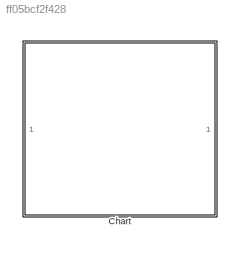
MODEL slx_ff05bcf2f428
KIND model
CONFIG AbsTol = auto
CONFIG EnableMultiTasking = off
CONFIG FixedStep = 0.01
CONFIG MaxStep = auto
CONFIG MinStep = auto
CONFIG RelTol = 1e-3
CONFIG SampleTimeConstraint = Unconstrained
CONFIG Solver = FixedStepDiscrete
CONFIG SolverName = FixedStepDiscrete
CONFIG StartTime = 0.0
CONFIG StopTime = inf
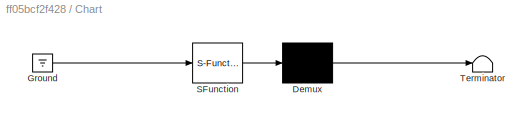
BLOCK [SubSystem] Chart
  ErrorFcn = Stateflow.Translate.translate
  PermitHierarchicalResolution = ExplicitOnly
  Ports = []
  RequestExecContextInheritance = off
  SFBlockType = Chart
  TreatAsAtomicUnit = on
BLOCK [Demux] Chart/ Demux 
  Outputs = 1
  Ports = [1, 1]
BLOCK [Ground] Chart/ Ground 
BLOCK [S-Function] Chart/ SFunction 
  EnableBusSupport = on
  FunctionName = sf_sfun
  PortCounts = [1 1]
  Ports = [1, 1]
  SFcnIsStateOwnerBlock = off
  SFunctionDeploymentMode = off
  Tag = Stateflow S-Function 3
BLOCK [Terminator] Chart/ Terminator 
CHART Chart states=6 transitions=11
  STATE_LABEL 'D'
  STATE_LABEL 'High_speed\n\nen:\ng_msg_out.CurState = state_D_high;\n\ndu:\ng_msg_out.acc = acc_update(state_D_high);'
  STATE_LABEL 'Low_speed\n\nen:\ng_msg_out.CurState = state_D_low;\n\ndu:\ng_msg_out.acc = acc_update(state_D_low);'
  STATE_LABEL 'Mid_speed\n\nen:\ng_msg_out.CurState = state_D_mid;\n\ndu:\ng_msg_out.acc = acc_update(state_D_mid);'
  STATE_LABEL '[g_msg_in.speed > 50]\n{g_msg_out.BrakeState = UnLock;}'
  STATE_LABEL '[g_msg_in.speed > 30]\n{g_msg_out.BrakeState = UnLock;}'
  STATE_LABEL '[g_msg_in.speed < 45]\n{g_msg_out.BrakeState = UnLock;}'
  STATE_LABEL '[g_msg_in.speed <25]\n{g_msg_out.BrakeState = UnLock;}'
  STATE_LABEL 'High_speed\n\nen:\ng_msg_out.CurState = state_D_high;\n\ndu:\ng_msg_out.acc = acc_update(state_D_high);'
  STATE_LABEL 'Low_speed\n\nen:\ng_msg_out.CurState = state_D_low;\n\ndu:\ng_msg_out.acc = acc_update(state_D_low);'
  STATE_LABEL 'Mid_speed\n\nen:\ng_msg_out.CurState = state_D_mid;\n\ndu:\ng_msg_out.acc = acc_update(state_D_mid);'
  STATE_LABEL 'P\n\nen:\ng_msg_out.CurState = state_P;\n\ndu:\ng_msg_out.acc = acc_update(state_P);'
  STATE_LABEL 'R\n\nen:\ng_msg_out.CurState = state_R;\n\ndu:\ng_msg_out.acc = acc_update(state_R);'
CHART  states=0 transitions=0
